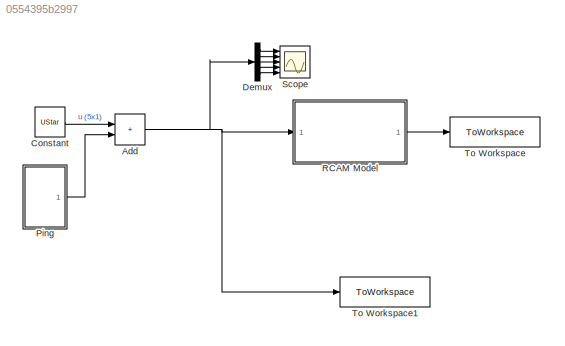
MODEL slx_0554395b2997
KIND model
CONFIG AbsTol = auto
CONFIG EnableMultiTasking = off
CONFIG FixedStep = auto
CONFIG MaxStep = auto
CONFIG MinStep = auto
CONFIG RelTol = 1e-3
CONFIG SampleTimeConstraint = Unconstrained
CONFIG Solver = VariableStepAuto
CONFIG SolverName = VariableStepAuto
CONFIG StartTime = 0.0
CONFIG StopTime = TF
BLOCK [Sum] Add
  IconShape = rectangular
  Ports = [2, 1]
BLOCK [Constant] Constant
  Value = UStar
BLOCK [Demux] Demux
  Outputs = 5
  Ports = [1, 5]
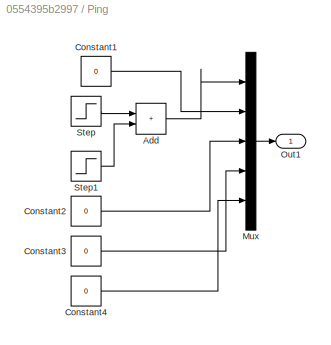
BLOCK [SubSystem] Ping
  Ports = [0, 1]
  RequestExecContextInheritance = off
BLOCK [Sum] Ping/Add
  IconShape = rectangular
  Ports = [2, 1]
BLOCK [Constant] Ping/Constant1
  Value = 0
BLOCK [Constant] Ping/Constant2
  Value = 0
BLOCK [Constant] Ping/Constant3
  Value = 0
BLOCK [Constant] Ping/Constant4
  Value = 0
BLOCK [Mux] Ping/Mux
  DisplayOption = bar
  Inputs = 5
  Ports = [5, 1]
BLOCK [Outport] Ping/Out1
BLOCK [Step] Ping/Step
  After = 5*pi/180
  SampleTime = 0
  Time = 5
BLOCK [Step] Ping/Step1
  After = -5*pi/180
  SampleTime = 0
  Time = 7
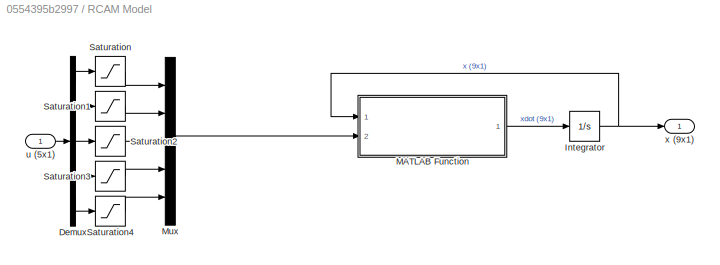
BLOCK [SubSystem] RCAM Model
  Ports = [1, 1]
  RequestExecContextInheritance = off
BLOCK [Demux] RCAM Model/Demux
  Outputs = 5
  Ports = [1, 5]
BLOCK [Integrator] RCAM Model/Integrator
  InitialCondition = XStar
  Ports = [1, 1]
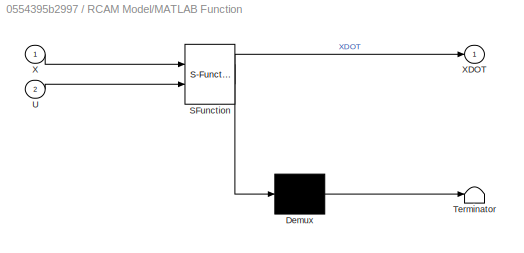
BLOCK [SubSystem] RCAM Model/MATLAB Function
  ErrorFcn = Stateflow.Translate.translate
  PermitHierarchicalResolution = ExplicitOnly
  Ports = [2, 1]
  RequestExecContextInheritance = off
  SFBlockType = MATLAB Function
  TreatAsAtomicUnit = on
BLOCK [Demux] RCAM Model/MATLAB Function/ Demux 
  Outputs = 1
  Ports = [1, 1]
BLOCK [S-Function] RCAM Model/MATLAB Function/ SFunction 
  EnableBusSupport = on
  FunctionName = sf_sfun
  PortCounts = [2 2]
  Ports = [2, 2]
  SFcnIsStateOwnerBlock = off
  SFunctionDeploymentMode = off
  Tag = Stateflow S-Function 2
BLOCK [Terminator] RCAM Model/MATLAB Function/ Terminator 
BLOCK [Inport] RCAM Model/MATLAB Function/U
  Port = 2
BLOCK [Inport] RCAM Model/MATLAB Function/X
BLOCK [Outport] RCAM Model/MATLAB Function/XDOT
BLOCK [Mux] RCAM Model/Mux
  DisplayOption = bar
  Inputs = 5
  Ports = [5, 1]
BLOCK [Saturate] RCAM Model/Saturation
  LowerLimit = u1min
  UpperLimit = u1max
BLOCK [Saturate] RCAM Model/Saturation1
  LowerLimit = u2min
  UpperLimit = u2max
BLOCK [Saturate] RCAM Model/Saturation2
  LowerLimit = u3min
  UpperLimit = u3max
BLOCK [Saturate] RCAM Model/Saturation3
  LowerLimit = u4min
  UpperLimit = u4max
BLOCK [Saturate] RCAM Model/Saturation4
  LowerLimit = u5min
  UpperLimit = u5max
BLOCK [Inport] RCAM Model/u (5x1)
BLOCK [Outport] RCAM Model/x (9x1)
BLOCK [Scope] Scope
  Floating = off
  NumInputPorts = 5
  Ports = [5]
  ScopeSpecificationString = Simulink.scopes.TimeScopeBlockCfg('CurrentConfiguration', extmgr.ConfigurationSet(extmgr.Configuration('Core','General UI',true),extmgr.Configuration('Core','Source UI',true),extmgr.Configuration('Sources','WiredSimulink',true),extmgr.Configuration('Visuals','Time Domain',true,'SerializedDisplays',{struct('MinYLimReal','0.000000036','MaxYLimReal','0.000000056','YLabelReal','','MinYLimMag','0.00000...<+3662ch>
BLOCK [ToWorkspace] To Workspace
  FixptAsFi = on
  MaxDataPoints = inf
  Ports = [1]
  SampleTime = -1
  SaveFormat = Timeseries
  VariableName = simX
BLOCK [ToWorkspace] To Workspace1
  FixptAsFi = on
  MaxDataPoints = inf
  Ports = [1]
  SampleTime = -1
  SaveFormat = Timeseries
  VariableName = simU
NET Add:1 -> Demux:1, RCAM Model:1, To Workspace1:1
LINE Constant:1 -> Add:1
LINE Demux:1 -> Scope:1
LINE Demux:2 -> Scope:2
LINE Demux:3 -> Scope:3
LINE Demux:4 -> Scope:4
LINE Demux:5 -> Scope:5
LINE Ping/Add:1 -> Ping/Mux:1
LINE Ping/Constant1:1 -> Ping/Mux:2
LINE Ping/Constant2:1 -> Ping/Mux:3
LINE Ping/Constant3:1 -> Ping/Mux:4
LINE Ping/Constant4:1 -> Ping/Mux:5
LINE Ping/Mux:1 -> Ping/Out1:1
LINE Ping/Step1:1 -> Ping/Add:2
LINE Ping/Step:1 -> Ping/Add:1
LINE Ping:1 -> Add:2
LINE RCAM Model/Demux:1 -> RCAM Model/Saturation:1
LINE RCAM Model/Demux:2 -> RCAM Model/Saturation1:1
LINE RCAM Model/Demux:3 -> RCAM Model/Saturation2:1
LINE RCAM Model/Demux:4 -> RCAM Model/Saturation3:1
LINE RCAM Model/Demux:5 -> RCAM Model/Saturation4:1
NET RCAM Model/Integrator:1 -> RCAM Model/MATLAB Function:1, RCAM Model/x (9x1):1
LINE RCAM Model/MATLAB Function:1 -> RCAM Model/Integrator:1
LINE RCAM Model/Mux:1 -> RCAM Model/MATLAB Function:2
LINE RCAM Model/Saturation1:1 -> RCAM Model/Mux:2
LINE RCAM Model/Saturation2:1 -> RCAM Model/Mux:3
LINE RCAM Model/Saturation3:1 -> RCAM Model/Mux:4
LINE RCAM Model/Saturation4:1 -> RCAM Model/Mux:5
LINE RCAM Model/Saturation:1 -> RCAM Model/Mux:1
LINE RCAM Model/u (5x1):1 -> RCAM Model/Demux:1
LINE RCAM Model:1 -> To Workspace:1
note: NET lines group one-source signal fan-out (src -> all destinations, sorted); 1:1 wires keep LINE
CHART RCAM Model/MATLAB Function states=1 transitions=1
  STATE_LABEL 'eML_blk_kernel()'
  STATE_LABEL 'SCRIPT:\nfunction XDOT    = RCAM_model_wrapper(X, U)\n\n[XDOT] = RCAM_model(X, U);\n'
CHART  states=0 transitions=0
